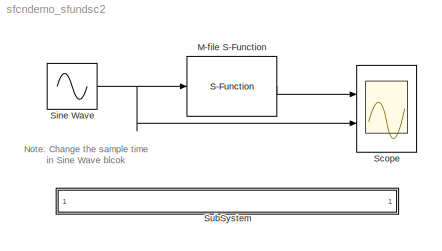
MODEL sfcndemo_sfundsc2
KIND model
BLOCK [S-Function] M-file S-Function
  FunctionName = sfundsc2
  MaskDescription = This is a M-file S-function which demonstrates how toimplement an unit delay.
  MaskDisplay = disp('Unit delay')
  MaskIconFrame = on
  MaskIconOpaque = on
  MaskIconRotate = none
  MaskIconUnits = autoscale
  MaskType = S-function: sfun_dsc2
  Ports = [1, 1]
BLOCK [Scope] Scope
  DataFormat = StructureWithTime
  NumInputPorts = 2
  Ports = [2]
  SampleTime = 0.2
  TimeRange = 10
  YMax = 2~2
  YMin = -2~-2
BLOCK [Sin] Sine Wave
  Amplitude = 2
  Ports = [0, 1]
  SampleTime = 0
BLOCK [SubSystem] SubSystem
  MaskDisplay = disp('matlabroot<path>');
  MaskIconFrame = on
  MaskIconOpaque = on
  MaskIconRotate = none
  MaskIconUnits = autoscale
  MinAlgLoopOccurrences = off
  OpenFcn = edit(fullfile(matlabroot,'toolbox','simulink','blocks','sfundsc2.m'))
  Ports = []
  PropExecContextAcrossSSBoundary = on
  RTWSystemCode = Auto
  TreatAsAtomicUnit = off
ANNOTATION (root): Note: Change the sample time\nin Sine Wave blcok
LINE M-file S-Function:1 -> Scope:1
NET Sine Wave:1 -> M-file S-Function:1, Scope:2
note: NET lines group one-source signal fan-out (src -> all destinations, sorted); 1:1 wires keep LINE
note: 1 file-system path scrubbed to <path> (not preserved elsewhere — flat text is the only slx artifact)
